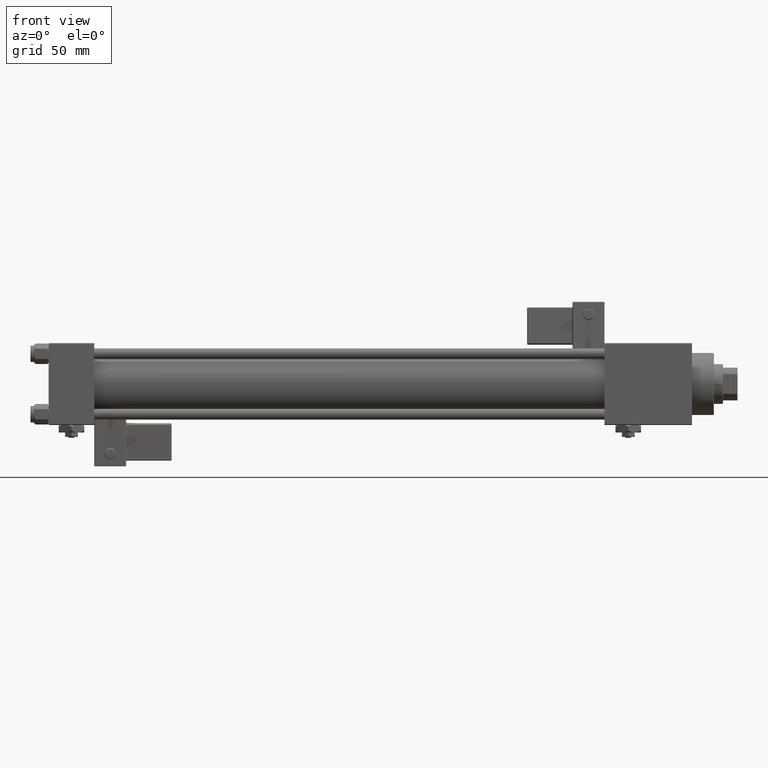
[diagram: clean part render]
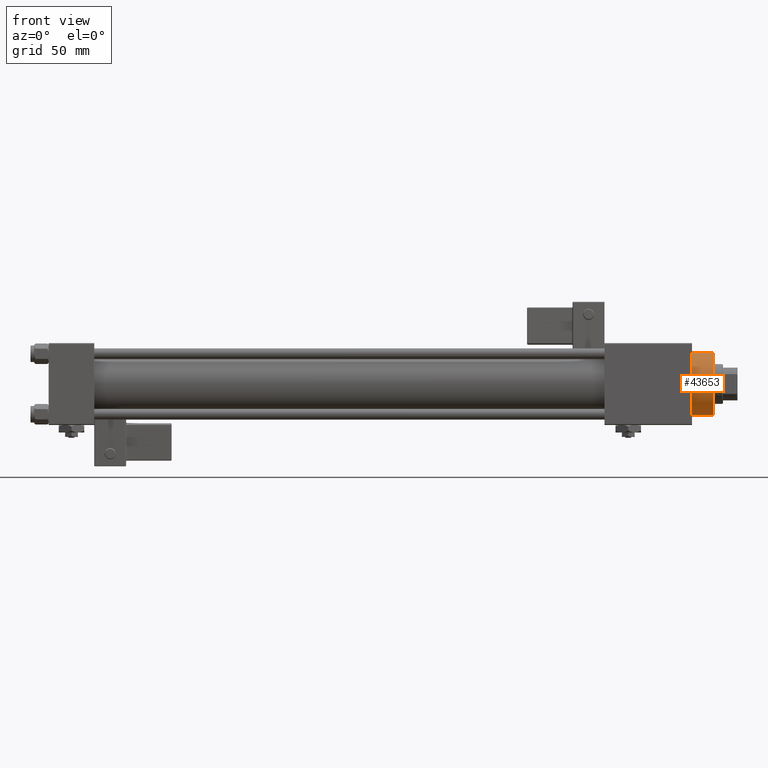
[diagram: same view with one face highlighted and labeled with its STEP entity id]
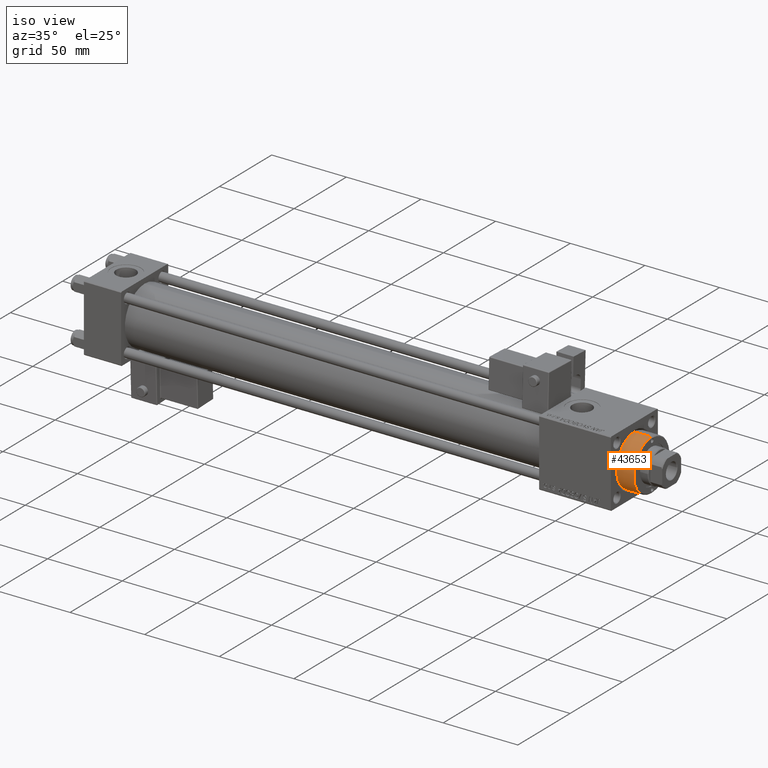
[diagram: same view with one face highlighted and labeled with its STEP entity id]
A machine part, front view. The second image highlights one B-rep face of the part: STEP entity #43653.
A second angle (iso view) of the same face is appended — the face is thin or edge-on in the first view.
In plain terms, the highlighted cylindrical surface (edge-blend (fillet) strip) has radius 17 mm, axis along (-1, -0, -0).
Its self-contained STEP definition (entity closure, byte-faithful):
#1952 = LINE ( 'NONE', #27048, #29323 ) ;
#2231 = CYLINDRICAL_SURFACE ( 'NONE', #3005, 17.00000000000000000 ) ;
#2407 = AXIS2_PLACEMENT_3D ( 'NONE', #26413, #21344, #8066 ) ;
#2812 = ORIENTED_EDGE ( 'NONE', *, *, #53665, .T. ) ;
#3005 = AXIS2_PLACEMENT_3D ( 'NONE', #27339, #49620, #36632 ) ;
#5213 = CARTESIAN_POINT ( 'NONE',  ( 17.00000000000000000, 2.081899558550500280E-15, 40.70000000000000284 ) ) ;
#5979 = DIRECTION ( 'NONE',  ( 1.000000000000000000, 0.000000000000000000, 0.000000000000000000 ) ) ;
#7998 = EDGE_LOOP ( 'NONE', ( #27334, #15656, #14192, #2812 ) ) ;
#8066 = DIRECTION ( 'NONE',  ( 1.000000000000000000, 0.000000000000000000, 0.000000000000000000 ) ) ;
#14192 = ORIENTED_EDGE ( 'NONE', *, *, #51977, .T. ) ;
#14257 = VERTEX_POINT ( 'NONE', #17255 ) ;
#15656 = ORIENTED_EDGE ( 'NONE', *, *, #26817, .T. ) ;
#16201 = CARTESIAN_POINT ( 'NONE',  ( 17.00000000000000000, 2.081899558550500280E-15, 28.69999999999999929 ) ) ;
#17255 = CARTESIAN_POINT ( 'NONE',  ( -17.00000000000000000, 0.000000000000000000, 40.19999999999999574 ) ) ;
#21344 = DIRECTION ( 'NONE',  ( 0.000000000000000000, 0.000000000000000000, 1.000000000000000000 ) ) ;
#23272 = LINE ( 'NONE', #5213, #42993 ) ;
#26413 = CARTESIAN_POINT ( 'NONE',  ( 0.000000000000000000, 0.000000000000000000, 28.69999999999999929 ) ) ;
#26817 = EDGE_CURVE ( 'NONE', #43387, #14257, #32161, .T. ) ;
#27048 = CARTESIAN_POINT ( 'NONE',  ( -17.00000000000000000, 0.000000000000000000, 40.70000000000000284 ) ) ;
#27334 = ORIENTED_EDGE ( 'NONE', *, *, #27350, .F. ) ;
#27339 = CARTESIAN_POINT ( 'NONE',  ( 0.000000000000000000, 0.000000000000000000, 40.70000000000000284 ) ) ;
#27350 = EDGE_CURVE ( 'NONE', #43387, #33664, #23272, .T. ) ;
#27669 = AXIS2_PLACEMENT_3D ( 'NONE', #48857, #39539, #5979 ) ;
#29323 = VECTOR ( 'NONE', #48484, 1000.000000000000000 ) ;
#32161 = CIRCLE ( 'NONE', #27669, 17.00000000000000000 ) ;
#33664 = VERTEX_POINT ( 'NONE', #16201 ) ;
#36072 = FACE_OUTER_BOUND ( 'NONE', #7998, .T. ) ;
#36632 = DIRECTION ( 'NONE',  ( -1.000000000000000000, 0.000000000000000000, 0.000000000000000000 ) ) ;
#37526 = CARTESIAN_POINT ( 'NONE',  ( 17.00000000000000000, 2.081899558550500280E-15, 40.19999999999999574 ) ) ;
#39539 = DIRECTION ( 'NONE',  ( 0.000000000000000000, 0.000000000000000000, -1.000000000000000000 ) ) ;
#39902 = DIRECTION ( 'NONE',  ( -0.000000000000000000, -0.000000000000000000, -1.000000000000000000 ) ) ;
#42929 = CIRCLE ( 'NONE', #2407, 17.00000000000000000 ) ;
#42993 = VECTOR ( 'NONE', #39902, 1000.000000000000000 ) ;
#43387 = VERTEX_POINT ( 'NONE', #37526 ) ;
#43653 = ADVANCED_FACE ( 'NONE', ( #36072 ), #2231, .T. ) ;
#48484 = DIRECTION ( 'NONE',  ( -0.000000000000000000, -0.000000000000000000, -1.000000000000000000 ) ) ;
#48857 = CARTESIAN_POINT ( 'NONE',  ( 0.000000000000000000, 0.000000000000000000, 40.19999999999999574 ) ) ;
#49620 = DIRECTION ( 'NONE',  ( -0.000000000000000000, -0.000000000000000000, -1.000000000000000000 ) ) ;
#50131 = VERTEX_POINT ( 'NONE', #52920 ) ;
#51977 = EDGE_CURVE ( 'NONE', #14257, #50131, #1952, .T. ) ;
#52920 = CARTESIAN_POINT ( 'NONE',  ( -17.00000000000000000, 0.000000000000000000, 28.69999999999999929 ) ) ;
#53665 = EDGE_CURVE ( 'NONE', #50131, #33664, #42929, .T. ) ;